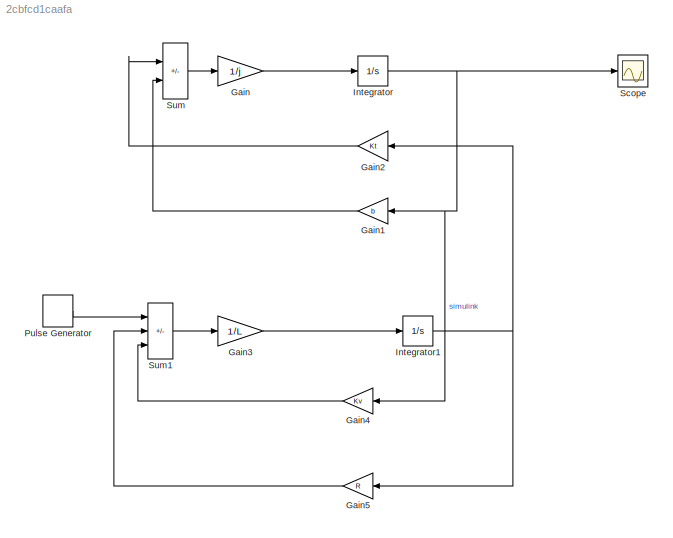
MODEL slx_2cbfcd1caafa
KIND model
CONFIG AbsTol = auto
CONFIG EnableMultiTasking = off
CONFIG FixedStep = auto
CONFIG MaxStep = 0.0001
CONFIG MinStep = auto
CONFIG RelTol = 1e-3
CONFIG SampleTimeConstraint = Unconstrained
CONFIG SolverName = VariableStepAuto
CONFIG StartTime = 0.0
CONFIG StopTime = 10.0
BLOCK [Gain] Gain
  Gain = 1/j
BLOCK [Gain] Gain1
  Gain = b
  NameLocation = top
BLOCK [Gain] Gain2
  Gain = Kt
  NameLocation = top
BLOCK [Gain] Gain3
  Gain = 1/L
BLOCK [Gain] Gain4
  Gain = Kv
  NameLocation = top
BLOCK [Gain] Gain5
  Gain = R
  NameLocation = top
BLOCK [Integrator] Integrator
BLOCK [Integrator] Integrator1
BLOCK [DiscretePulseGenerator] Pulse Generator
  Amplitude = 24
  Period = 1/2000
  PulseType = Time based
  PulseWidth = 21
BLOCK [Scope] Scope
  Floating = off
  NumInputPorts = 1
  ScopeSpecificationString = Simulink.scopes.TimeScopeBlockCfg('CurrentConfiguration', extmgr.ConfigurationSet(extmgr.Configuration('Core','General UI',true),extmgr.Configuration('Core','Source UI',true),extmgr.Configuration('Sources','WiredSimulink',true),extmgr.Configuration('Visuals','Time Domain',true,'SerializedDisplays',{struct('MinYLimReal','-2.51999','MaxYLimReal','22.67994','YLabelReal','','MinYLimMag','0.00000','Max...<+1367ch>
BLOCK [Sum] Sum
  IconShape = rectangular
  Inputs = +-
BLOCK [Sum] Sum1
  IconShape = rectangular
  Inputs = +--
LINE Gain1:1 -> Sum:2
LINE Gain2:1 -> Sum:1
LINE Gain3:1 -> Integrator1:1
LINE Gain4:1 -> Sum1:3
LINE Gain5:1 -> Sum1:2
LINE Gain:1 -> Integrator:1
NET Integrator1:1 -> Gain2:1, Gain5:1
NET Integrator:1 -> Gain1:1, Gain4:1, Scope:1
LINE Pulse Generator:1 -> Sum1:1
LINE Sum1:1 -> Gain3:1
LINE Sum:1 -> Gain:1
note: NET lines group one-source signal fan-out (src -> all destinations, sorted); 1:1 wires keep LINE
